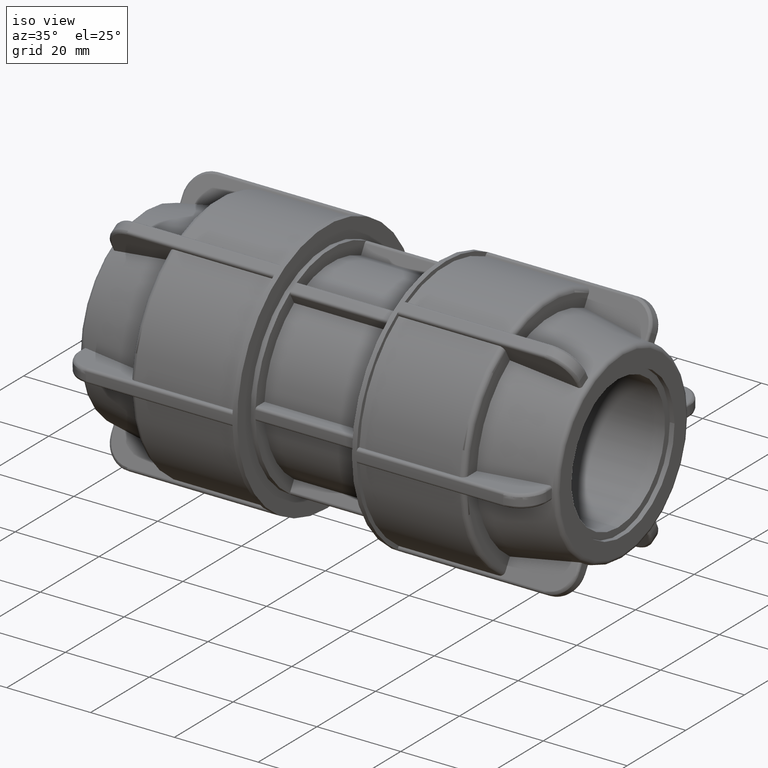
[diagram: clean part render]
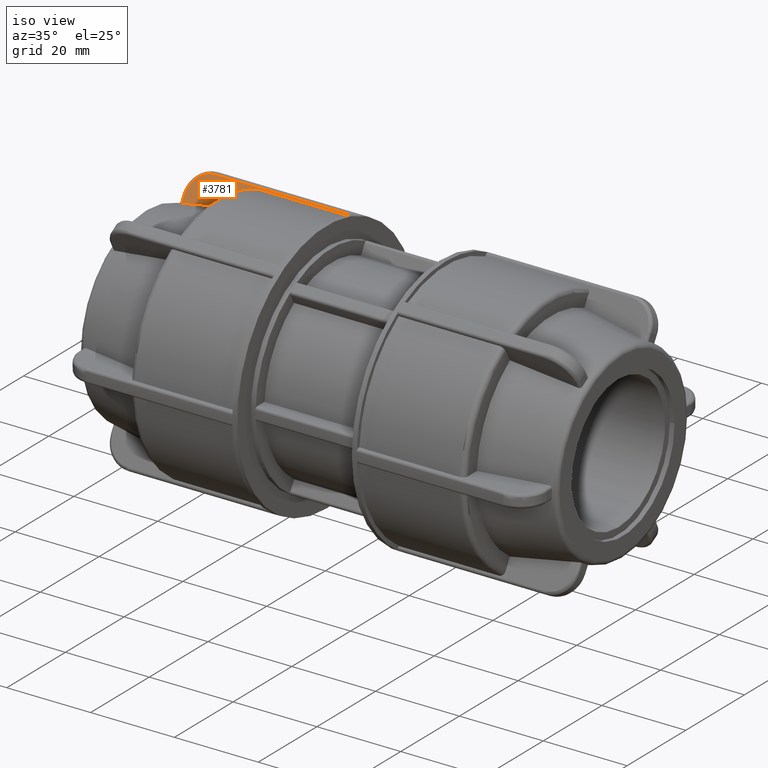
[diagram: same view with one face highlighted and labeled with its STEP entity id]
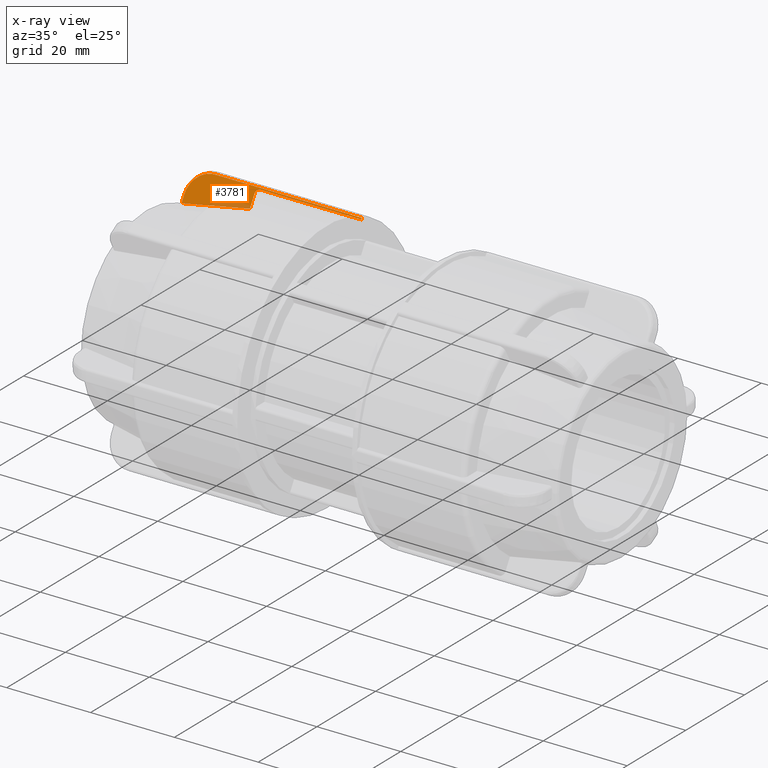
[diagram: x-ray of the same camera — body ghosted, the highlighted face saturated]
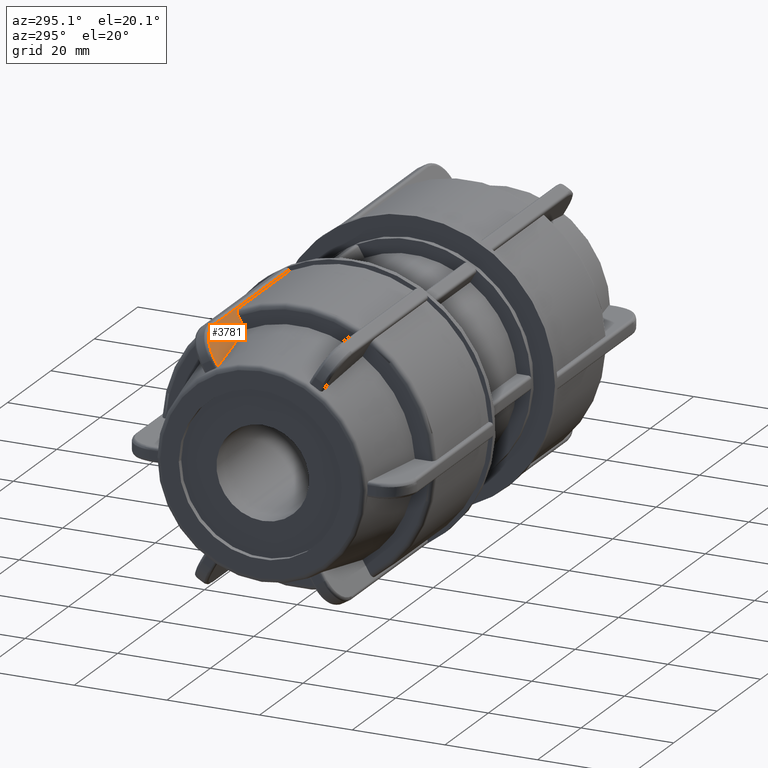
[diagram: same view with one face highlighted and labeled with its STEP entity id]
A machine part, iso view. The second image highlights one B-rep face of the part: STEP entity #3781.
The next image is the same camera in x-ray: the body ghosted, the highlighted face saturated — about 12% of this face is hidden behind the body in this view.
A second angle (auxiliary view) of the same face is appended — the face is thin or edge-on in the first view.
In plain terms, the highlighted planar face has unit normal (-0, 0.866, -0.5).
Its self-contained STEP definition (entity closure, byte-faithful):
#48=(
BOUNDED_CURVE()
B_SPLINE_CURVE(2,(#6571,#6572,#6573),.UNSPECIFIED.,.F.,.F.)
B_SPLINE_CURVE_WITH_KNOTS((3,3),(0.,1.55517595804826),.UNSPECIFIED.)
CURVE()
GEOMETRIC_REPRESENTATION_ITEM()
RATIONAL_B_SPLINE_CURVE((1.,1.0016597107714,1.00013426191194))
REPRESENTATION_ITEM('')
);
#100=B_SPLINE_CURVE_WITH_KNOTS('',3,(#6542,#6543,#6544,#6545,#6546,#6547),
 .UNSPECIFIED.,.F.,.F.,(4,1,1,4),(0.,0.36970050898286,0.616167514971433,
0.862634520960006),.UNSPECIFIED.);
#102=B_SPLINE_CURVE_WITH_KNOTS('',3,(#6577,#6578,#6579,#6580,#6581,#6582,
#6583,#6584,#6585,#6586),.UNSPECIFIED.,.F.,.F.,(4,2,2,2,4),(0.,0.0421872088120845,
0.0844060247228059,0.126664721365402,0.168959208642007),.UNSPECIFIED.);
#247=PLANE('',#4111);
#395=FACE_OUTER_BOUND('',#637,.T.);
#637=EDGE_LOOP('',(#2876,#2877,#2878,#2879,#2880,#2881,#2882,#2883));
#905=LINE('',#6501,#1133);
#906=LINE('',#6563,#1134);
#908=LINE('',#6575,#1136);
#909=LINE('',#6588,#1137);
#910=LINE('',#6589,#1138);
#1133=VECTOR('',#4841,34.94);
#1134=VECTOR('',#4848,1.72777200380247);
#1136=VECTOR('',#4860,3.03518743799491);
#1137=VECTOR('',#4861,23.94);
#1138=VECTOR('',#4862,0.331897235670798);
#1660=VERTEX_POINT('',#6498);
#1661=VERTEX_POINT('',#6500);
#1663=VERTEX_POINT('',#6540);
#1665=VERTEX_POINT('',#6550);
#1666=VERTEX_POINT('',#6570);
#1667=VERTEX_POINT('',#6574);
#1668=VERTEX_POINT('',#6576);
#1669=VERTEX_POINT('',#6587);
#2114=EDGE_CURVE('',#1660,#1661,#905,.T.);
#2118=EDGE_CURVE('',#1663,#1660,#100,.T.);
#2120=EDGE_CURVE('',#1665,#1663,#906,.T.);
#2124=EDGE_CURVE('',#1666,#1665,#48,.T.);
#2125=EDGE_CURVE('',#1667,#1666,#908,.T.);
#2126=EDGE_CURVE('',#1668,#1667,#102,.T.);
#2127=EDGE_CURVE('',#1669,#1668,#909,.T.);
#2128=EDGE_CURVE('',#1661,#1669,#910,.T.);
#2876=ORIENTED_EDGE('',*,*,#2120,.F.);
#2877=ORIENTED_EDGE('',*,*,#2124,.F.);
#2878=ORIENTED_EDGE('',*,*,#2125,.F.);
#2879=ORIENTED_EDGE('',*,*,#2126,.F.);
#2880=ORIENTED_EDGE('',*,*,#2127,.F.);
#2881=ORIENTED_EDGE('',*,*,#2128,.F.);
#2882=ORIENTED_EDGE('',*,*,#2114,.F.);
#2883=ORIENTED_EDGE('',*,*,#2118,.F.);
#3781=ADVANCED_FACE('',(#395),#247,.F.);
#4111=AXIS2_PLACEMENT_3D('',#6569,#4858,#4859);
#4841=DIRECTION('',(1.,2.06002626772772E-16,5.34843088213067E-17));
#4848=DIRECTION('',(-2.18599976448154E-16,0.5,0.866025403784438));
#4858=DIRECTION('center_axis',(-1.51661353620891E-16,0.866025403784439,
-0.5));
#4859=DIRECTION('ref_axis',(1.77635683940025E-16,-0.5,-0.866025403784439));
#4860=DIRECTION('',(1.53080849893419E-16,-0.5,-0.866025403784438));
#4861=DIRECTION('',(-1.,-3.06161699786838E-16,0.));
#4862=DIRECTION('',(1.53080849893419E-16,-0.5,-0.866025403784438));
#6498=CARTESIAN_POINT('',(-49.76,13.5511595467573,26.6712968364556));
#6500=CARTESIAN_POINT('',(-14.82,13.5511595467573,26.6712968364556));
#6501=CARTESIAN_POINT('',(-14.25,13.5511595467573,26.6712968364556));
#6540=CARTESIAN_POINT('',(-55.25,10.8043132094769,21.9136194197016));
#6542=CARTESIAN_POINT('Ctrl Pts',(-55.25,10.8043132094769,21.9136194197016));
#6543=CARTESIAN_POINT('Ctrl Pts',(-55.25,11.4204807244483,22.9808528616056));
#6544=CARTESIAN_POINT('Ctrl Pts',(-54.5306011769557,12.4437559622994,24.7532175636907));
#6545=CARTESIAN_POINT('Ctrl Pts',(-52.2217257988858,13.3630477942301,26.3454777235777));
#6546=CARTESIAN_POINT('Ctrl Pts',(-50.5815566866286,13.5511595467573,26.6712968364557));
#6547=CARTESIAN_POINT('Ctrl Pts',(-49.76,13.5511595467573,26.6712968364557));
#6550=CARTESIAN_POINT('',(-55.25,9.94042720757568,20.4173249724611));
#6563=CARTESIAN_POINT('',(-55.25,11.1738354877823,22.5536507802551));
#6569=CARTESIAN_POINT('Origin',(-13.68,13.8433612910385,27.1774051036109));
#6570=CARTESIAN_POINT('',(-39.9,11.2967482493734,22.7665419282295));
#6571=CARTESIAN_POINT('Ctrl Pts',(-39.9,11.2967482493734,22.7665419282295));
#6572=CARTESIAN_POINT('Ctrl Pts',(-48.0085874851915,10.5804460175675,21.5258700691667));
#6573=CARTESIAN_POINT('Ctrl Pts',(-55.2500000000004,9.94042720757564,20.417324972461));
#6574=CARTESIAN_POINT('',(-39.9,12.8143419683709,25.3950913547805));
#6575=CARTESIAN_POINT('',(-39.9,9.40575924375603,19.4912528939461));
#6576=CARTESIAN_POINT('',(-38.76,13.3852109289219,26.3838653989189));
#6577=CARTESIAN_POINT('Ctrl Pts',(-38.76,13.3852109289219,26.3838653989189));
#6578=CARTESIAN_POINT('Ctrl Pts',(-38.9006240293736,13.3852109289219,26.3838653989189));
#6579=CARTESIAN_POINT('Ctrl Pts',(-39.0661236597164,13.3687333551162,26.355325403902));
#6580=CARTESIAN_POINT('Ctrl Pts',(-39.3260279398787,13.3148596377223,26.2620133881831));
#6581=CARTESIAN_POINT('Ctrl Pts',(-39.4663946709314,13.2679127648657,26.1806990191391));
#6582=CARTESIAN_POINT('Ctrl Pts',(-39.6654204568603,13.1683102713759,26.0081824398542));
#6583=CARTESIAN_POINT('Ctrl Pts',(-39.7592572633368,13.0980119555689,25.88642218519));
#6584=CARTESIAN_POINT('Ctrl Pts',(-39.8670327443908,12.9678001513763,25.6608887245831));
#6585=CARTESIAN_POINT('Ctrl Pts',(-39.9,12.8848327804985,25.5171850228525));
#6586=CARTESIAN_POINT('Ctrl Pts',(-39.9,12.8143419683709,25.3950913547805));
#6587=CARTESIAN_POINT('',(-14.82,13.3852109289219,26.3838653989189));
#6588=CARTESIAN_POINT('',(-27.36,13.3852109289219,26.3838653989189));
#6589=CARTESIAN_POINT('',(-14.82,9.92698532249169,20.3940429445461));